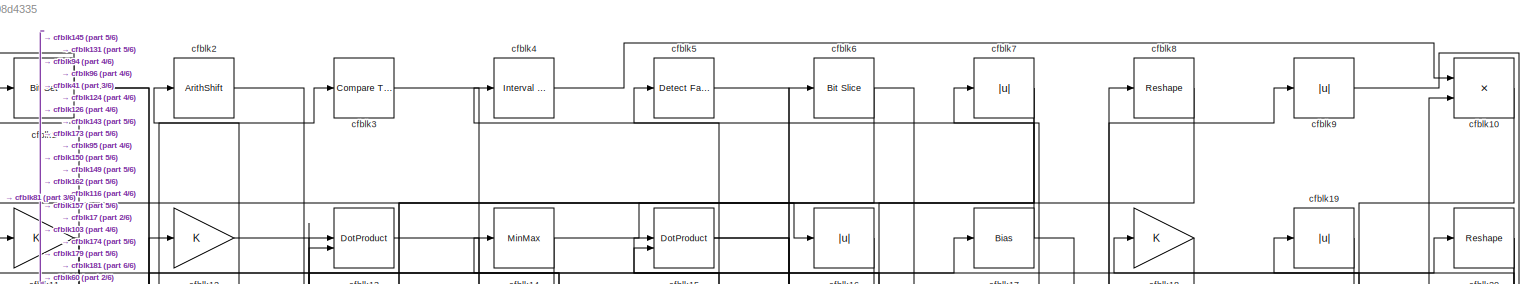
[diagram: root canvas - part 1/6, full width, top band]
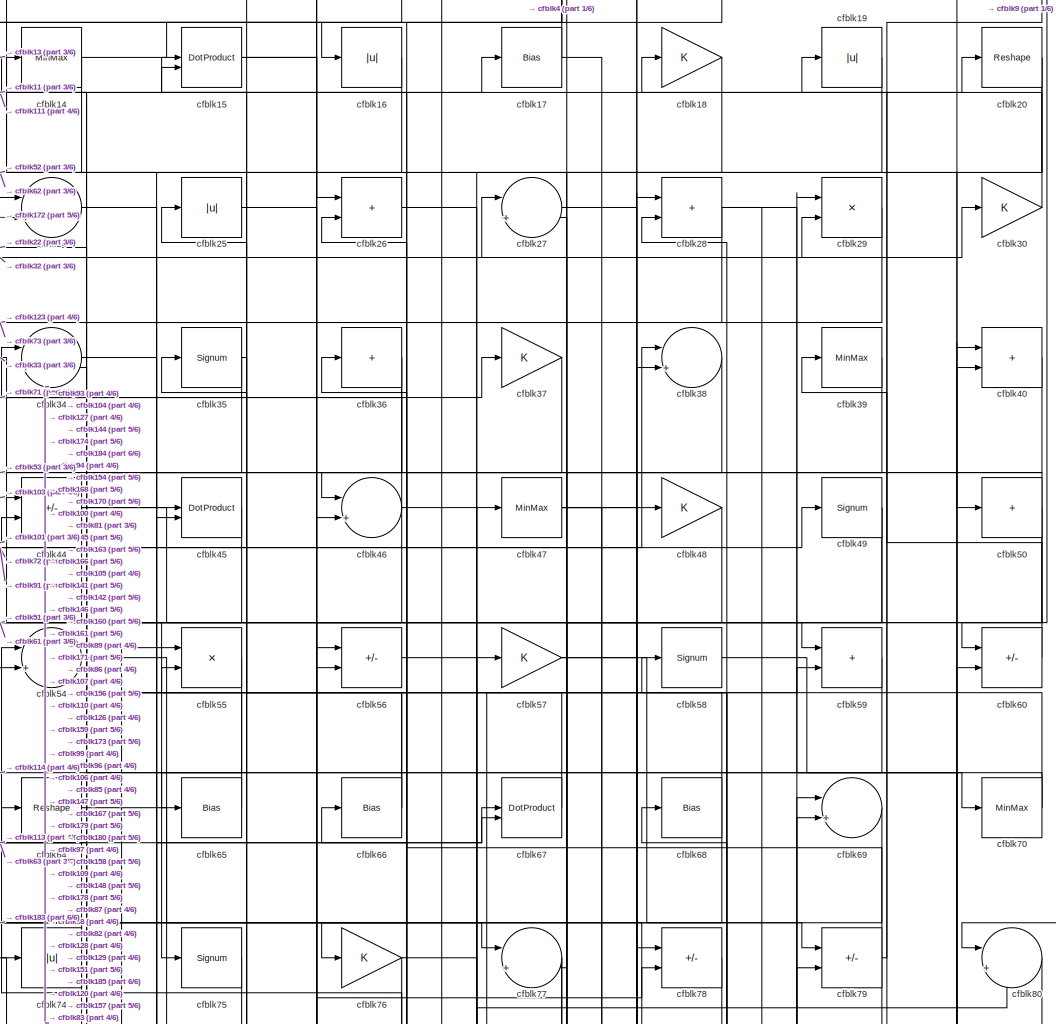
[diagram: root canvas - part 2/6, top center region]
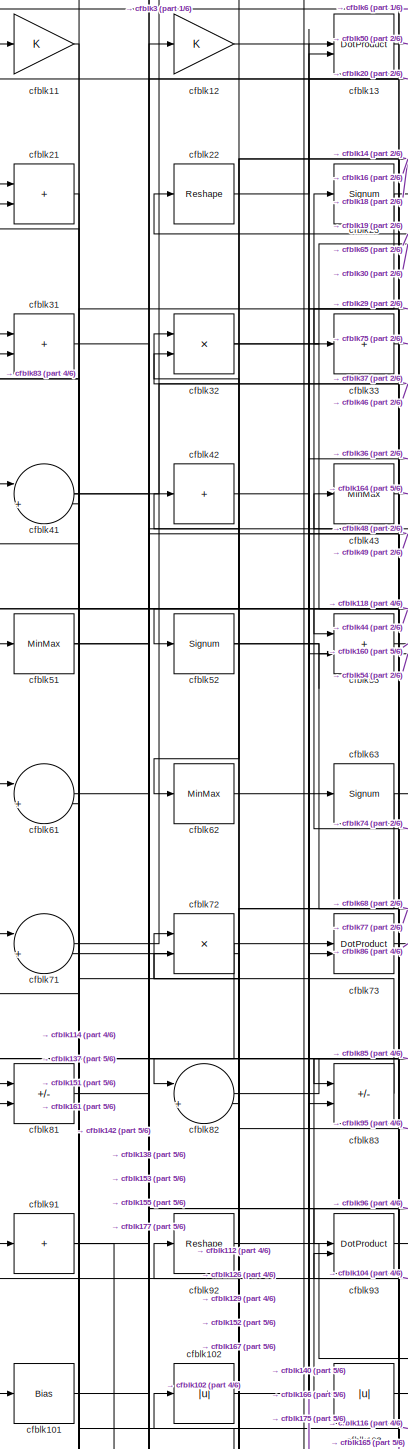
[diagram: root canvas - part 3/6, top left region]
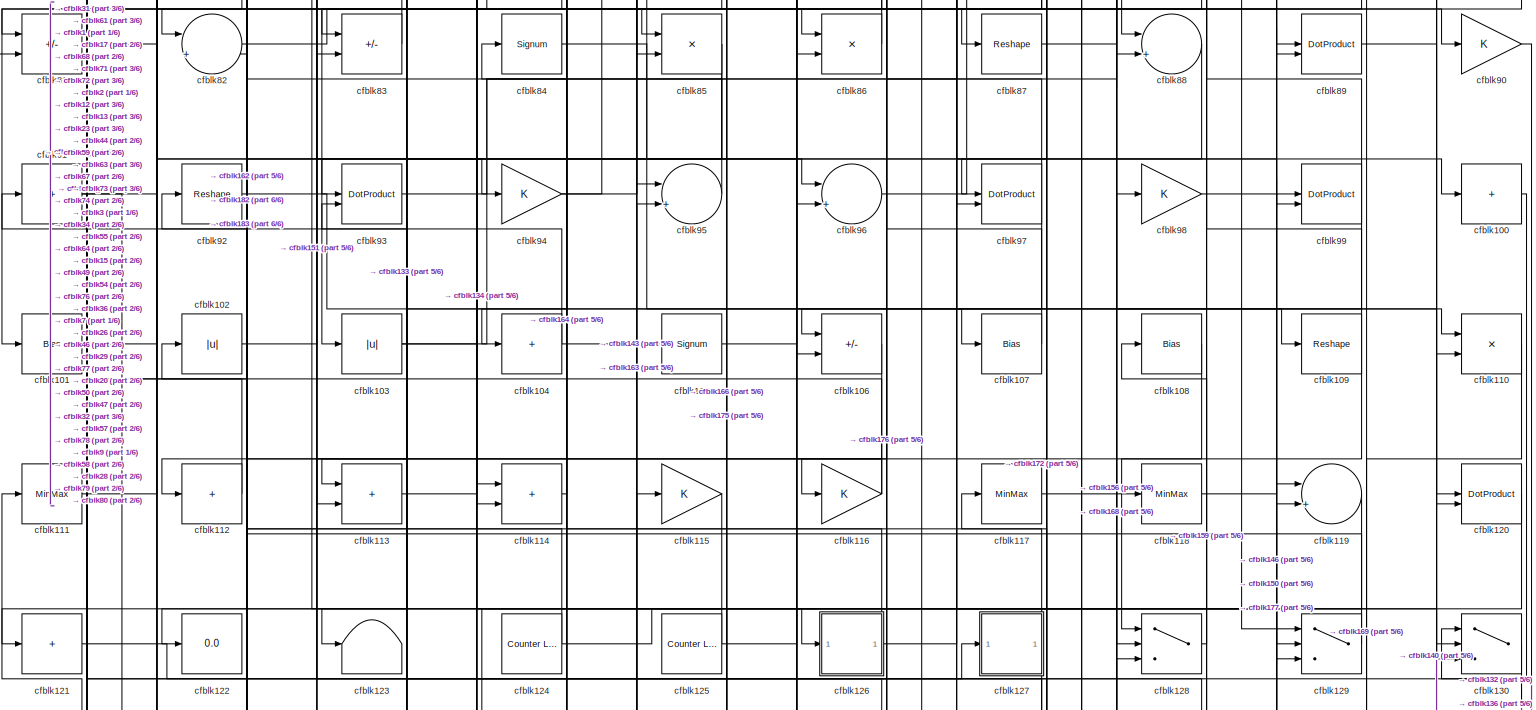
[diagram: root canvas - part 4/6, full width, middle band]
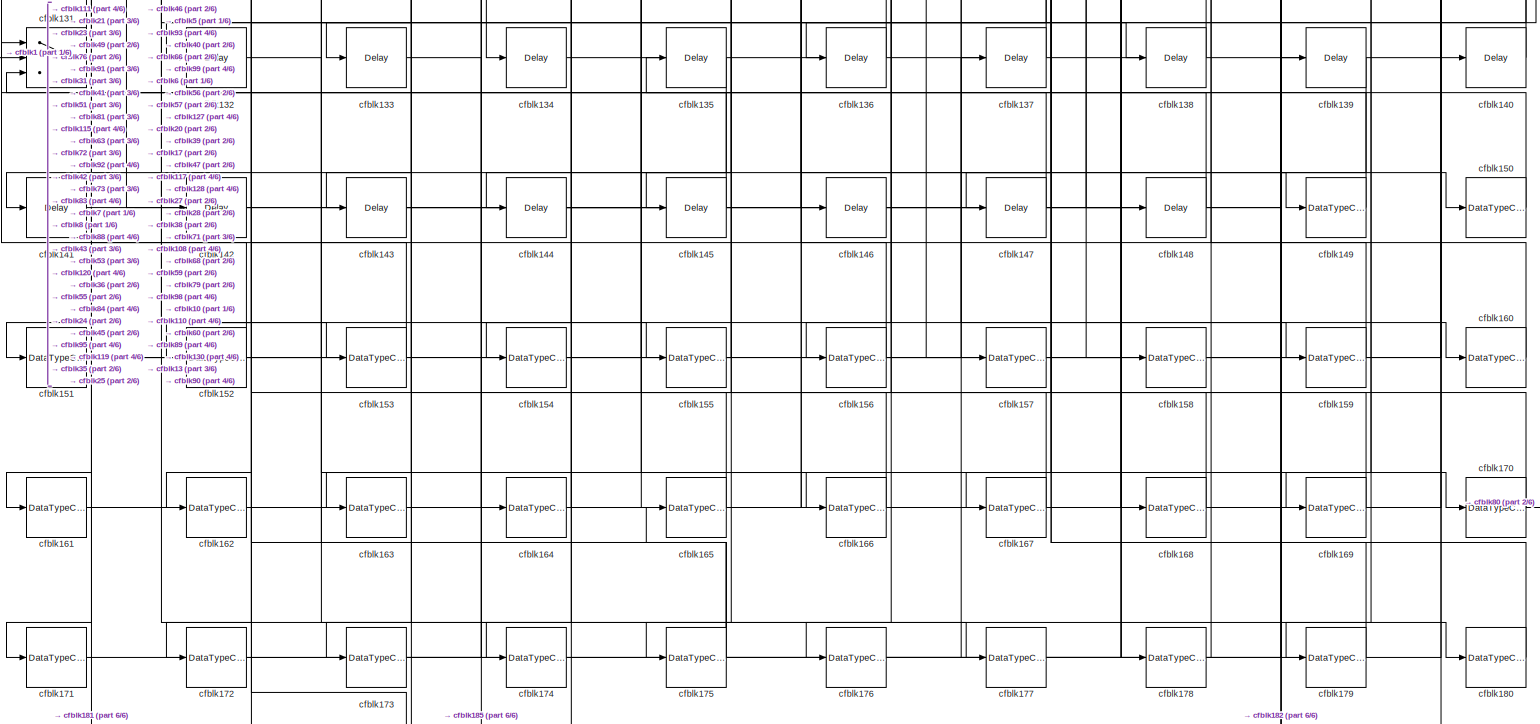
[diagram: root canvas - part 5/6, full width, bottom band]
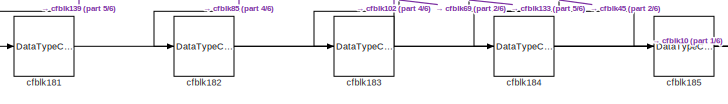
[diagram: root canvas - part 6/6, bottom left region]
MODEL slx_b82cc08d4335
KIND model
CONFIG AbsTol = auto
CONFIG EnableMultiTasking = off
CONFIG FixedStep = auto
CONFIG MaxStep = auto
CONFIG MinStep = auto
CONFIG RelTol = 1e-3
CONFIG SampleTimeConstraint = Unconstrained
CONFIG SolverName = VariableStepAuto
CONFIG StartTime = 0.0
CONFIG StopTime = 10.0
BLOCK [Reference] cfblk1  REF=simulink/Logic and Bit
Operations/Bit Set
  LibrarySourceBlock = hdlsllib/Logic and Bit\nOperations/Bit Set
  SourceBlock = simulink/Logic and Bit\nOperations/Bit Set
  SourceType = Bit Set
BLOCK [Product] cfblk10
  Inputs = */
  RndMeth = Zero
  SaturateOnIntegerOverflow = on
BLOCK [Sum] cfblk100
  IconShape = rectangular
  Inputs = +
BLOCK [Bias] cfblk101
  Bias = 0.0
  SaturateOnIntegerOverflow = off
BLOCK [Abs] cfblk102
  SaturateOnIntegerOverflow = off
BLOCK [Abs] cfblk103
  SaturateOnIntegerOverflow = off
BLOCK [Sum] cfblk104
  IconShape = rectangular
  Inputs = +
BLOCK [Signum] cfblk105
BLOCK [Sum] cfblk106
  IconShape = rectangular
  Inputs = +-
BLOCK [Bias] cfblk107
  Bias = 0.0
  SaturateOnIntegerOverflow = off
BLOCK [Bias] cfblk108
  Bias = 0.0
  SaturateOnIntegerOverflow = off
BLOCK [Reshape] cfblk109
BLOCK [Gain] cfblk11
BLOCK [Product] cfblk110
  Inputs = */
  RndMeth = Zero
  SaturateOnIntegerOverflow = on
BLOCK [MinMax] cfblk111
BLOCK [Sum] cfblk112
  IconShape = rectangular
  Inputs = +
BLOCK [Sum] cfblk113
  IconShape = rectangular
BLOCK [Sum] cfblk114
  IconShape = rectangular
BLOCK [Gain] cfblk115
BLOCK [Gain] cfblk116
BLOCK [MinMax] cfblk117
BLOCK [MinMax] cfblk118
BLOCK [Sum] cfblk119
  Inputs = |++
BLOCK [Gain] cfblk12
BLOCK [DotProduct] cfblk120
  OutDataTypeStr = Inherit: Inherit via internal rule
BLOCK [Sum] cfblk121
  IconShape = rectangular
  Inputs = +
BLOCK [Display] cfblk122
  Decimation = 1
BLOCK [Terminator] cfblk123
BLOCK [Reference] cfblk124  REF=hdlsllib/Sources/Counter
Limited
  SourceBlock = hdlsllib/Sources/Counter\nLimited
  SourceType = Counter Limited
BLOCK [Reference] cfblk125  REF=hdlsllib/Sources/Counter
Limited
  SourceBlock = hdlsllib/Sources/Counter\nLimited
  SourceType = Counter Limited
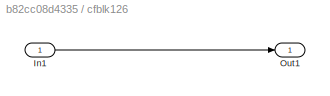
BLOCK [SubSystem] cfblk126
  LibrarySourceBlock = hdlsllib/Ports &\nSubsystems/Subsystem
BLOCK [Inport] cfblk126/In1
BLOCK [Outport] cfblk126/Out1
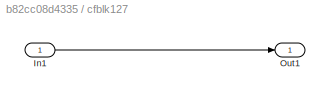
BLOCK [SubSystem] cfblk127
  LibrarySourceBlock = hdlsllib/Ports &\nSubsystems/Subsystem
BLOCK [Inport] cfblk127/In1
BLOCK [Outport] cfblk127/Out1
BLOCK [Switch] cfblk128
  InputSameDT = off
  SaturateOnIntegerOverflow = off
BLOCK [Switch] cfblk129
  InputSameDT = off
  SaturateOnIntegerOverflow = off
BLOCK [DotProduct] cfblk13
  OutDataTypeStr = Inherit: Inherit via internal rule
BLOCK [Switch] cfblk130
  InputSameDT = off
  SaturateOnIntegerOverflow = off
BLOCK [Switch] cfblk131
  InputSameDT = off
  SaturateOnIntegerOverflow = off
BLOCK [Delay] cfblk132
  InputPortMap = u0
  SampleTime = 1
BLOCK [Delay] cfblk133
  InputPortMap = u0
  SampleTime = 1
BLOCK [Delay] cfblk134
  InputPortMap = u0
  SampleTime = 1
BLOCK [Delay] cfblk135
  InputPortMap = u0
  SampleTime = 1
BLOCK [Delay] cfblk136
  InputPortMap = u0
  SampleTime = 1
BLOCK [Delay] cfblk137
  InputPortMap = u0
  SampleTime = 1
BLOCK [Delay] cfblk138
  InputPortMap = u0
  SampleTime = 1
BLOCK [Delay] cfblk139
  InputPortMap = u0
  SampleTime = 1
BLOCK [MinMax] cfblk14
BLOCK [Delay] cfblk140
  InputPortMap = u0
  SampleTime = 1
BLOCK [Delay] cfblk141
  InputPortMap = u0
  SampleTime = 1
BLOCK [Delay] cfblk142
  InputPortMap = u0
  SampleTime = 1
BLOCK [Delay] cfblk143
  InputPortMap = u0
  SampleTime = 1
BLOCK [Delay] cfblk144
  InputPortMap = u0
  SampleTime = 1
BLOCK [Delay] cfblk145
  InputPortMap = u0
  SampleTime = 1
BLOCK [Delay] cfblk146
  InputPortMap = u0
  SampleTime = 1
BLOCK [Delay] cfblk147
  InputPortMap = u0
  SampleTime = 1
BLOCK [Delay] cfblk148
  InputPortMap = u0
  SampleTime = 1
BLOCK [DataTypeConversion] cfblk149
  OutDataTypeStr = uint8
  RndMeth = Floor
  SaturateOnIntegerOverflow = off
BLOCK [DotProduct] cfblk15
  OutDataTypeStr = Inherit: Inherit via internal rule
BLOCK [DataTypeConversion] cfblk150
  OutDataTypeStr = uint8
  RndMeth = Floor
  SaturateOnIntegerOverflow = off
BLOCK [DataTypeConversion] cfblk151
  RndMeth = Floor
  SaturateOnIntegerOverflow = off
BLOCK [DataTypeConversion] cfblk152
  OutDataTypeStr = uint8
  RndMeth = Floor
  SaturateOnIntegerOverflow = off
BLOCK [DataTypeConversion] cfblk153
  OutDataTypeStr = uint8
  RndMeth = Floor
  SaturateOnIntegerOverflow = off
BLOCK [DataTypeConversion] cfblk154
  OutDataTypeStr = uint8
  RndMeth = Floor
  SaturateOnIntegerOverflow = off
BLOCK [DataTypeConversion] cfblk155
  OutDataTypeStr = uint8
  RndMeth = Floor
  SaturateOnIntegerOverflow = off
BLOCK [DataTypeConversion] cfblk156
  RndMeth = Floor
  SaturateOnIntegerOverflow = off
BLOCK [DataTypeConversion] cfblk157
  OutDataTypeStr = uint8
  RndMeth = Floor
  SaturateOnIntegerOverflow = off
BLOCK [DataTypeConversion] cfblk158
  OutDataTypeStr = uint8
  RndMeth = Floor
  SaturateOnIntegerOverflow = off
BLOCK [DataTypeConversion] cfblk159
  OutDataTypeStr = uint8
  RndMeth = Floor
  SaturateOnIntegerOverflow = off
BLOCK [Abs] cfblk16
  SaturateOnIntegerOverflow = off
BLOCK [DataTypeConversion] cfblk160
  OutDataTypeStr = uint8
  RndMeth = Floor
  SaturateOnIntegerOverflow = off
BLOCK [DataTypeConversion] cfblk161
  OutDataTypeStr = uint8
  RndMeth = Floor
  SaturateOnIntegerOverflow = off
BLOCK [DataTypeConversion] cfblk162
  RndMeth = Floor
  SaturateOnIntegerOverflow = off
BLOCK [DataTypeConversion] cfblk163
  OutDataTypeStr = uint8
  RndMeth = Floor
  SaturateOnIntegerOverflow = off
BLOCK [DataTypeConversion] cfblk164
  OutDataTypeStr = uint8
  RndMeth = Floor
  SaturateOnIntegerOverflow = off
BLOCK [DataTypeConversion] cfblk165
  OutDataTypeStr = uint8
  RndMeth = Floor
  SaturateOnIntegerOverflow = off
BLOCK [DataTypeConversion] cfblk166
  RndMeth = Floor
  SaturateOnIntegerOverflow = off
BLOCK [DataTypeConversion] cfblk167
  OutDataTypeStr = uint8
  RndMeth = Floor
  SaturateOnIntegerOverflow = off
BLOCK [DataTypeConversion] cfblk168
  OutDataTypeStr = uint8
  RndMeth = Floor
  SaturateOnIntegerOverflow = off
BLOCK [DataTypeConversion] cfblk169
  OutDataTypeStr = uint8
  RndMeth = Floor
  SaturateOnIntegerOverflow = off
BLOCK [Bias] cfblk17
  Bias = 0.0
  SaturateOnIntegerOverflow = off
BLOCK [DataTypeConversion] cfblk170
  RndMeth = Floor
  SaturateOnIntegerOverflow = off
BLOCK [DataTypeConversion] cfblk171
  OutDataTypeStr = uint8
  RndMeth = Floor
  SaturateOnIntegerOverflow = off
BLOCK [DataTypeConversion] cfblk172
  OutDataTypeStr = uint8
  RndMeth = Floor
  SaturateOnIntegerOverflow = off
BLOCK [DataTypeConversion] cfblk173
  RndMeth = Floor
  SaturateOnIntegerOverflow = off
BLOCK [DataTypeConversion] cfblk174
  OutDataTypeStr = uint8
  RndMeth = Floor
  SaturateOnIntegerOverflow = off
BLOCK [DataTypeConversion] cfblk175
  RndMeth = Floor
  SaturateOnIntegerOverflow = off
BLOCK [DataTypeConversion] cfblk176
  OutDataTypeStr = uint8
  RndMeth = Floor
  SaturateOnIntegerOverflow = off
BLOCK [DataTypeConversion] cfblk177
  OutDataTypeStr = uint8
  RndMeth = Floor
  SaturateOnIntegerOverflow = off
BLOCK [DataTypeConversion] cfblk178
  OutDataTypeStr = uint8
  RndMeth = Floor
  SaturateOnIntegerOverflow = off
BLOCK [DataTypeConversion] cfblk179
  OutDataTypeStr = uint8
  RndMeth = Floor
  SaturateOnIntegerOverflow = off
BLOCK [Gain] cfblk18
BLOCK [DataTypeConversion] cfblk180
  OutDataTypeStr = uint8
  RndMeth = Floor
  SaturateOnIntegerOverflow = off
BLOCK [DataTypeConversion] cfblk181
  OutDataTypeStr = uint8
  RndMeth = Floor
  SaturateOnIntegerOverflow = off
BLOCK [DataTypeConversion] cfblk182
  OutDataTypeStr = uint8
  RndMeth = Floor
  SaturateOnIntegerOverflow = off
BLOCK [DataTypeConversion] cfblk183
  OutDataTypeStr = uint8
  RndMeth = Floor
  SaturateOnIntegerOverflow = off
BLOCK [DataTypeConversion] cfblk184
  OutDataTypeStr = uint8
  RndMeth = Floor
  SaturateOnIntegerOverflow = off
BLOCK [DataTypeConversion] cfblk185
  OutDataTypeStr = uint8
  RndMeth = Floor
  SaturateOnIntegerOverflow = off
BLOCK [Abs] cfblk19
  SaturateOnIntegerOverflow = off
BLOCK [ArithShift] cfblk2
  BitShiftNumber = 8
  InputPortMap = u0
BLOCK [Reshape] cfblk20
BLOCK [Sum] cfblk21
  IconShape = rectangular
BLOCK [Reshape] cfblk22
BLOCK [Signum] cfblk23
BLOCK [Sum] cfblk24
  Inputs = |++
BLOCK [Abs] cfblk25
  SaturateOnIntegerOverflow = off
BLOCK [Sum] cfblk26
  IconShape = rectangular
BLOCK [Sum] cfblk27
  Inputs = |++
BLOCK [Sum] cfblk28
  IconShape = rectangular
BLOCK [Product] cfblk29
  Inputs = */
  RndMeth = Zero
  SaturateOnIntegerOverflow = on
BLOCK [Reference] cfblk3  REF=hdlsllib/Logic and Bit
Operations/Compare
To Zero
  SourceBlock = hdlsllib/Logic and Bit\nOperations/Compare\nTo Zero
  SourceType = Compare To Zero
BLOCK [Gain] cfblk30
BLOCK [Sum] cfblk31
  IconShape = rectangular
BLOCK [Product] cfblk32
  Inputs = */
  RndMeth = Zero
  SaturateOnIntegerOverflow = on
BLOCK [Sum] cfblk33
  IconShape = rectangular
  Inputs = +
BLOCK [Sum] cfblk34
  Inputs = |++
BLOCK [Signum] cfblk35
BLOCK [Sum] cfblk36
  IconShape = rectangular
  Inputs = +
BLOCK [Gain] cfblk37
BLOCK [Sum] cfblk38
  Inputs = |++
BLOCK [MinMax] cfblk39
BLOCK [Reference] cfblk4  REF=hdlsllib/Logic and Bit
Operations/Interval Test
  SourceBlock = hdlsllib/Logic and Bit\nOperations/Interval Test
  SourceType = Interval Test
BLOCK [Sum] cfblk40
  IconShape = rectangular
BLOCK [Sum] cfblk41
  Inputs = |++
BLOCK [Sum] cfblk42
  IconShape = rectangular
  Inputs = +
BLOCK [MinMax] cfblk43
BLOCK [Sum] cfblk44
  IconShape = rectangular
  Inputs = +-
BLOCK [DotProduct] cfblk45
  OutDataTypeStr = Inherit: Inherit via internal rule
BLOCK [Sum] cfblk46
  Inputs = |++
BLOCK [MinMax] cfblk47
BLOCK [Gain] cfblk48
BLOCK [Signum] cfblk49
BLOCK [Reference] cfblk5  REF=hdlsllib/Logic and Bit
Operations/Detect Fall
Negative
  SourceBlock = hdlsllib/Logic and Bit\nOperations/Detect Fall\nNegative
  SourceType = Detect Fall Negative
BLOCK [Sum] cfblk50
  IconShape = rectangular
  Inputs = +
BLOCK [MinMax] cfblk51
BLOCK [Signum] cfblk52
BLOCK [Sum] cfblk53
  IconShape = rectangular
BLOCK [Sum] cfblk54
  Inputs = |++
BLOCK [Product] cfblk55
  Inputs = */
  RndMeth = Zero
  SaturateOnIntegerOverflow = on
BLOCK [Sum] cfblk56
  IconShape = rectangular
  Inputs = +-
BLOCK [Gain] cfblk57
BLOCK [Signum] cfblk58
BLOCK [Sum] cfblk59
  IconShape = rectangular
BLOCK [Reference] cfblk6  REF=hdlsllib/Logic and Bit
Operations/Bit Slice
  SourceBlock = hdlsllib/Logic and Bit\nOperations/Bit Slice
  SourceType = Bit Slice
BLOCK [Sum] cfblk60
  IconShape = rectangular
  Inputs = +-
BLOCK [Sum] cfblk61
  Inputs = |++
BLOCK [MinMax] cfblk62
BLOCK [Signum] cfblk63
BLOCK [Reshape] cfblk64
BLOCK [Bias] cfblk65
  Bias = 0.0
  SaturateOnIntegerOverflow = off
BLOCK [Bias] cfblk66
  Bias = 0.0
  SaturateOnIntegerOverflow = off
BLOCK [DotProduct] cfblk67
  OutDataTypeStr = Inherit: Inherit via internal rule
BLOCK [Bias] cfblk68
  Bias = 0.0
  SaturateOnIntegerOverflow = off
BLOCK [Sum] cfblk69
  Inputs = |++
BLOCK [Abs] cfblk7
  SaturateOnIntegerOverflow = off
BLOCK [MinMax] cfblk70
BLOCK [Sum] cfblk71
  Inputs = |++
BLOCK [Product] cfblk72
  Inputs = */
  RndMeth = Zero
  SaturateOnIntegerOverflow = on
BLOCK [DotProduct] cfblk73
  OutDataTypeStr = Inherit: Inherit via internal rule
BLOCK [Abs] cfblk74
  SaturateOnIntegerOverflow = off
BLOCK [Signum] cfblk75
BLOCK [Gain] cfblk76
BLOCK [Sum] cfblk77
  Inputs = |++
BLOCK [Sum] cfblk78
  IconShape = rectangular
  Inputs = +-
BLOCK [Sum] cfblk79
  IconShape = rectangular
  Inputs = +-
BLOCK [Reshape] cfblk8
BLOCK [Sum] cfblk80
  Inputs = |++
BLOCK [Sum] cfblk81
  IconShape = rectangular
  Inputs = +-
BLOCK [Sum] cfblk82
  Inputs = |++
BLOCK [Sum] cfblk83
  IconShape = rectangular
  Inputs = +-
BLOCK [Signum] cfblk84
BLOCK [Product] cfblk85
  Inputs = */
  RndMeth = Zero
  SaturateOnIntegerOverflow = on
BLOCK [Product] cfblk86
  Inputs = */
  RndMeth = Zero
  SaturateOnIntegerOverflow = on
BLOCK [Reshape] cfblk87
BLOCK [Sum] cfblk88
  Inputs = |++
BLOCK [DotProduct] cfblk89
  OutDataTypeStr = Inherit: Inherit via internal rule
BLOCK [Abs] cfblk9
  SaturateOnIntegerOverflow = off
BLOCK [Gain] cfblk90
BLOCK [Sum] cfblk91
  IconShape = rectangular
  Inputs = +
BLOCK [Reshape] cfblk92
BLOCK [DotProduct] cfblk93
  OutDataTypeStr = Inherit: Inherit via internal rule
BLOCK [Gain] cfblk94
BLOCK [Sum] cfblk95
  Inputs = |++
BLOCK [Sum] cfblk96
  Inputs = |++
BLOCK [DotProduct] cfblk97
  OutDataTypeStr = Inherit: Inherit via internal rule
BLOCK [Gain] cfblk98
BLOCK [DotProduct] cfblk99
  OutDataTypeStr = Inherit: Inherit via internal rule
LINE cfblk100:1 -> cfblk130:1
LINE cfblk101:1 -> cfblk44:2
LINE cfblk102:1 -> cfblk13:2
NET cfblk103:1 -> cfblk44:1, cfblk9:1
NET cfblk104:1 -> cfblk105:1, cfblk91:1
LINE cfblk105:1 -> cfblk78:2
LINE cfblk106:1 -> cfblk113:2
LINE cfblk107:1 -> cfblk15:2
LINE cfblk108:1 -> cfblk128:1
NET cfblk109:1 -> cfblk122:1, cfblk28:2
LINE cfblk10:1 -> cfblk179:1
LINE cfblk110:1 -> cfblk169:1
LINE cfblk111:1 -> cfblk17:1
LINE cfblk112:1 -> cfblk31:1
LINE cfblk113:1 -> cfblk67:1
LINE cfblk114:1 -> cfblk64:1
LINE cfblk115:1 -> cfblk162:1
NET cfblk116:1 -> cfblk112:1, cfblk61:2
LINE cfblk117:1 -> cfblk168:1
LINE cfblk118:1 -> cfblk89:1
LINE cfblk119:1 -> cfblk175:1
LINE cfblk11:1 -> cfblk41:2
LINE cfblk120:1 -> cfblk134:1
LINE cfblk121:1 -> cfblk127:1
NET cfblk124:1 -> cfblk128:2, cfblk2:1
NET cfblk125:1 -> cfblk121:1, cfblk130:2
LINE cfblk126/In1:1 -> cfblk126/Out1:1
NET cfblk126:1 -> cfblk32:2, cfblk80:2
LINE cfblk127/In1:1 -> cfblk127/Out1:1
NET cfblk127:1 -> cfblk172:1, cfblk34:2
LINE cfblk128:1 -> cfblk58:1
LINE cfblk129:1 -> cfblk72:1
LINE cfblk12:1 -> cfblk96:1
LINE cfblk130:1 -> cfblk136:1
LINE cfblk131:1 -> cfblk111:1
LINE cfblk132:1 -> cfblk180:1
LINE cfblk133:1 -> cfblk185:1
LINE cfblk134:1 -> cfblk110:2
LINE cfblk135:1 -> cfblk154:1
LINE cfblk136:1 -> cfblk93:2
LINE cfblk137:1 -> cfblk41:1
LINE cfblk138:1 -> cfblk71:1
LINE cfblk139:1 -> cfblk181:1
LINE cfblk13:1 -> cfblk50:1
LINE cfblk140:1 -> cfblk13:1
LINE cfblk141:1 -> cfblk38:2
LINE cfblk142:1 -> cfblk46:2
LINE cfblk143:1 -> cfblk95:2
LINE cfblk144:1 -> cfblk79:2
LINE cfblk145:1 -> cfblk1:1
LINE cfblk146:1 -> cfblk99:1
LINE cfblk147:1 -> cfblk131:1
LINE cfblk148:1 -> cfblk131:3
LINE cfblk149:1 -> cfblk7:1
NET cfblk14:1 -> cfblk16:1, cfblk33:1
LINE cfblk150:1 -> cfblk5:1
NET cfblk151:1 -> cfblk137:1, cfblk59:2, cfblk83:2
LINE cfblk152:1 -> cfblk21:1
LINE cfblk153:1 -> cfblk21:2
LINE cfblk154:1 -> cfblk45:2
LINE cfblk155:1 -> cfblk135:1
NET cfblk156:1 -> cfblk28:1, cfblk92:1
LINE cfblk157:1 -> cfblk40:1
LINE cfblk158:1 -> cfblk40:2
LINE cfblk159:1 -> cfblk108:1
NET cfblk15:1 -> cfblk26:1, cfblk89:2
LINE cfblk160:1 -> cfblk56:1
LINE cfblk161:1 -> cfblk56:2
NET cfblk162:1 -> cfblk128:3, cfblk6:1
LINE cfblk163:1 -> cfblk115:1
LINE cfblk164:1 -> cfblk84:1
LINE cfblk165:1 -> cfblk43:1
NET cfblk166:1 -> cfblk130:3, cfblk35:1
LINE cfblk167:1 -> cfblk42:1
LINE cfblk168:1 -> cfblk45:1
LINE cfblk169:1 -> cfblk117:1
LINE cfblk16:1 -> cfblk53:1
NET cfblk170:1 -> cfblk66:1, cfblk80:1
LINE cfblk171:1 -> cfblk24:1
LINE cfblk172:1 -> cfblk24:2
NET cfblk173:1 -> cfblk57:1, cfblk60:2
LINE cfblk174:1 -> cfblk8:1
NET cfblk175:1 -> cfblk165:1, cfblk72:2, cfblk73:1, cfblk98:1
LINE cfblk176:1 -> cfblk119:1
LINE cfblk177:1 -> cfblk119:2
LINE cfblk178:1 -> cfblk68:1
LINE cfblk179:1 -> cfblk27:1
NET cfblk17:1 -> cfblk158:1, cfblk4:1
LINE cfblk180:1 -> cfblk27:2
LINE cfblk181:1 -> cfblk10:2
LINE cfblk182:1 -> cfblk139:1
LINE cfblk183:1 -> cfblk102:1
LINE cfblk184:1 -> cfblk69:1
LINE cfblk185:1 -> cfblk69:2
LINE cfblk18:1 -> cfblk52:1
LINE cfblk19:1 -> cfblk62:1
NET cfblk1:1 -> cfblk131:2, cfblk94:1, cfblk96:2
NET cfblk20:1 -> cfblk147:1, cfblk97:2
LINE cfblk21:1 -> cfblk151:1
LINE cfblk22:1 -> cfblk20:1
NET cfblk23:1 -> cfblk114:1, cfblk161:1
LINE cfblk24:1 -> cfblk170:1
LINE cfblk25:1 -> cfblk146:1
LINE cfblk26:1 -> cfblk110:1
LINE cfblk27:1 -> cfblk178:1
NET cfblk28:1 -> cfblk123:1, cfblk129:1, cfblk70:1
LINE cfblk29:1 -> cfblk73:2
LINE cfblk2:1 -> cfblk126:1
LINE cfblk30:1 -> cfblk18:1
LINE cfblk31:1 -> cfblk138:1
NET cfblk32:1 -> cfblk118:1, cfblk30:1
LINE cfblk33:1 -> cfblk75:1
LINE cfblk34:1 -> cfblk86:2
NET cfblk35:1 -> cfblk145:1, cfblk163:1
NET cfblk36:1 -> cfblk144:1, cfblk53:2
LINE cfblk37:1 -> cfblk74:1
LINE cfblk38:1 -> cfblk76:1
LINE cfblk39:1 -> cfblk167:1
LINE cfblk3:1 -> cfblk95:1
LINE cfblk40:1 -> cfblk156:1
NET cfblk41:1 -> cfblk177:1, cfblk3:1
LINE cfblk42:1 -> cfblk166:1
LINE cfblk43:1 -> cfblk164:1
NET cfblk44:1 -> cfblk29:2, cfblk51:1, cfblk59:1
LINE cfblk45:1 -> cfblk184:1
NET cfblk46:1 -> cfblk104:1, cfblk129:3, cfblk32:1
NET cfblk47:1 -> cfblk148:1, cfblk38:1, cfblk88:2
LINE cfblk48:1 -> cfblk61:1
NET cfblk49:1 -> cfblk106:2, cfblk141:1
LINE cfblk4:1 -> cfblk10:1
NET cfblk50:1 -> cfblk46:1, cfblk77:2, cfblk87:1
NET cfblk51:1 -> cfblk12:1, cfblk153:1
NET cfblk52:1 -> cfblk54:2, cfblk77:1
LINE cfblk53:1 -> cfblk160:1
LINE cfblk54:1 -> cfblk88:1
LINE cfblk55:1 -> cfblk174:1
LINE cfblk56:1 -> cfblk159:1
NET cfblk57:1 -> cfblk109:1, cfblk79:1
LINE cfblk58:1 -> cfblk120:2
LINE cfblk59:1 -> cfblk114:2
LINE cfblk5:1 -> cfblk149:1
LINE cfblk60:1 -> cfblk19:1
LINE cfblk61:1 -> cfblk85:1
LINE cfblk62:1 -> cfblk23:1
NET cfblk63:1 -> cfblk129:2, cfblk152:1
LINE cfblk64:1 -> cfblk100:1
LINE cfblk65:1 -> cfblk22:1
NET cfblk66:1 -> cfblk15:1, cfblk34:1
LINE cfblk67:1 -> cfblk14:1
NET cfblk68:1 -> cfblk11:1, cfblk82:2
LINE cfblk69:1 -> cfblk183:1
NET cfblk6:1 -> cfblk157:1, cfblk81:2
NET cfblk70:1 -> cfblk25:1, cfblk65:1
LINE cfblk71:1 -> cfblk37:1
NET cfblk72:1 -> cfblk101:1, cfblk48:1
LINE cfblk73:1 -> cfblk86:1
NET cfblk74:1 -> cfblk63:1, cfblk93:1
LINE cfblk75:1 -> cfblk81:1
NET cfblk76:1 -> cfblk171:1, cfblk99:2
NET cfblk77:1 -> cfblk106:1, cfblk85:2
LINE cfblk78:1 -> cfblk82:1
NET cfblk79:1 -> cfblk26:2, cfblk39:1, cfblk97:1
NET cfblk7:1 -> cfblk116:1, cfblk143:1
LINE cfblk80:1 -> cfblk83:1
LINE cfblk81:1 -> cfblk155:1
LINE cfblk82:1 -> cfblk90:1
LINE cfblk83:1 -> cfblk31:2
LINE cfblk84:1 -> cfblk120:1
NET cfblk85:1 -> cfblk103:1, cfblk182:1
LINE cfblk86:1 -> cfblk54:1
LINE cfblk87:1 -> cfblk78:1
LINE cfblk88:1 -> cfblk133:1
LINE cfblk89:1 -> cfblk140:1
LINE cfblk8:1 -> cfblk173:1
LINE cfblk90:1 -> cfblk132:1
NET cfblk91:1 -> cfblk142:1, cfblk49:1
LINE cfblk92:1 -> cfblk107:1
LINE cfblk93:1 -> cfblk47:1
NET cfblk94:1 -> cfblk55:1, cfblk67:2
LINE cfblk95:1 -> cfblk71:2
LINE cfblk96:1 -> cfblk29:1
NET cfblk97:1 -> cfblk113:1, cfblk36:1
LINE cfblk98:1 -> cfblk150:1
NET cfblk99:1 -> cfblk176:1, cfblk55:2
LINE cfblk9:1 -> cfblk60:1
note: NET lines group one-source signal fan-out (src -> all destinations, sorted); 1:1 wires keep LINE
